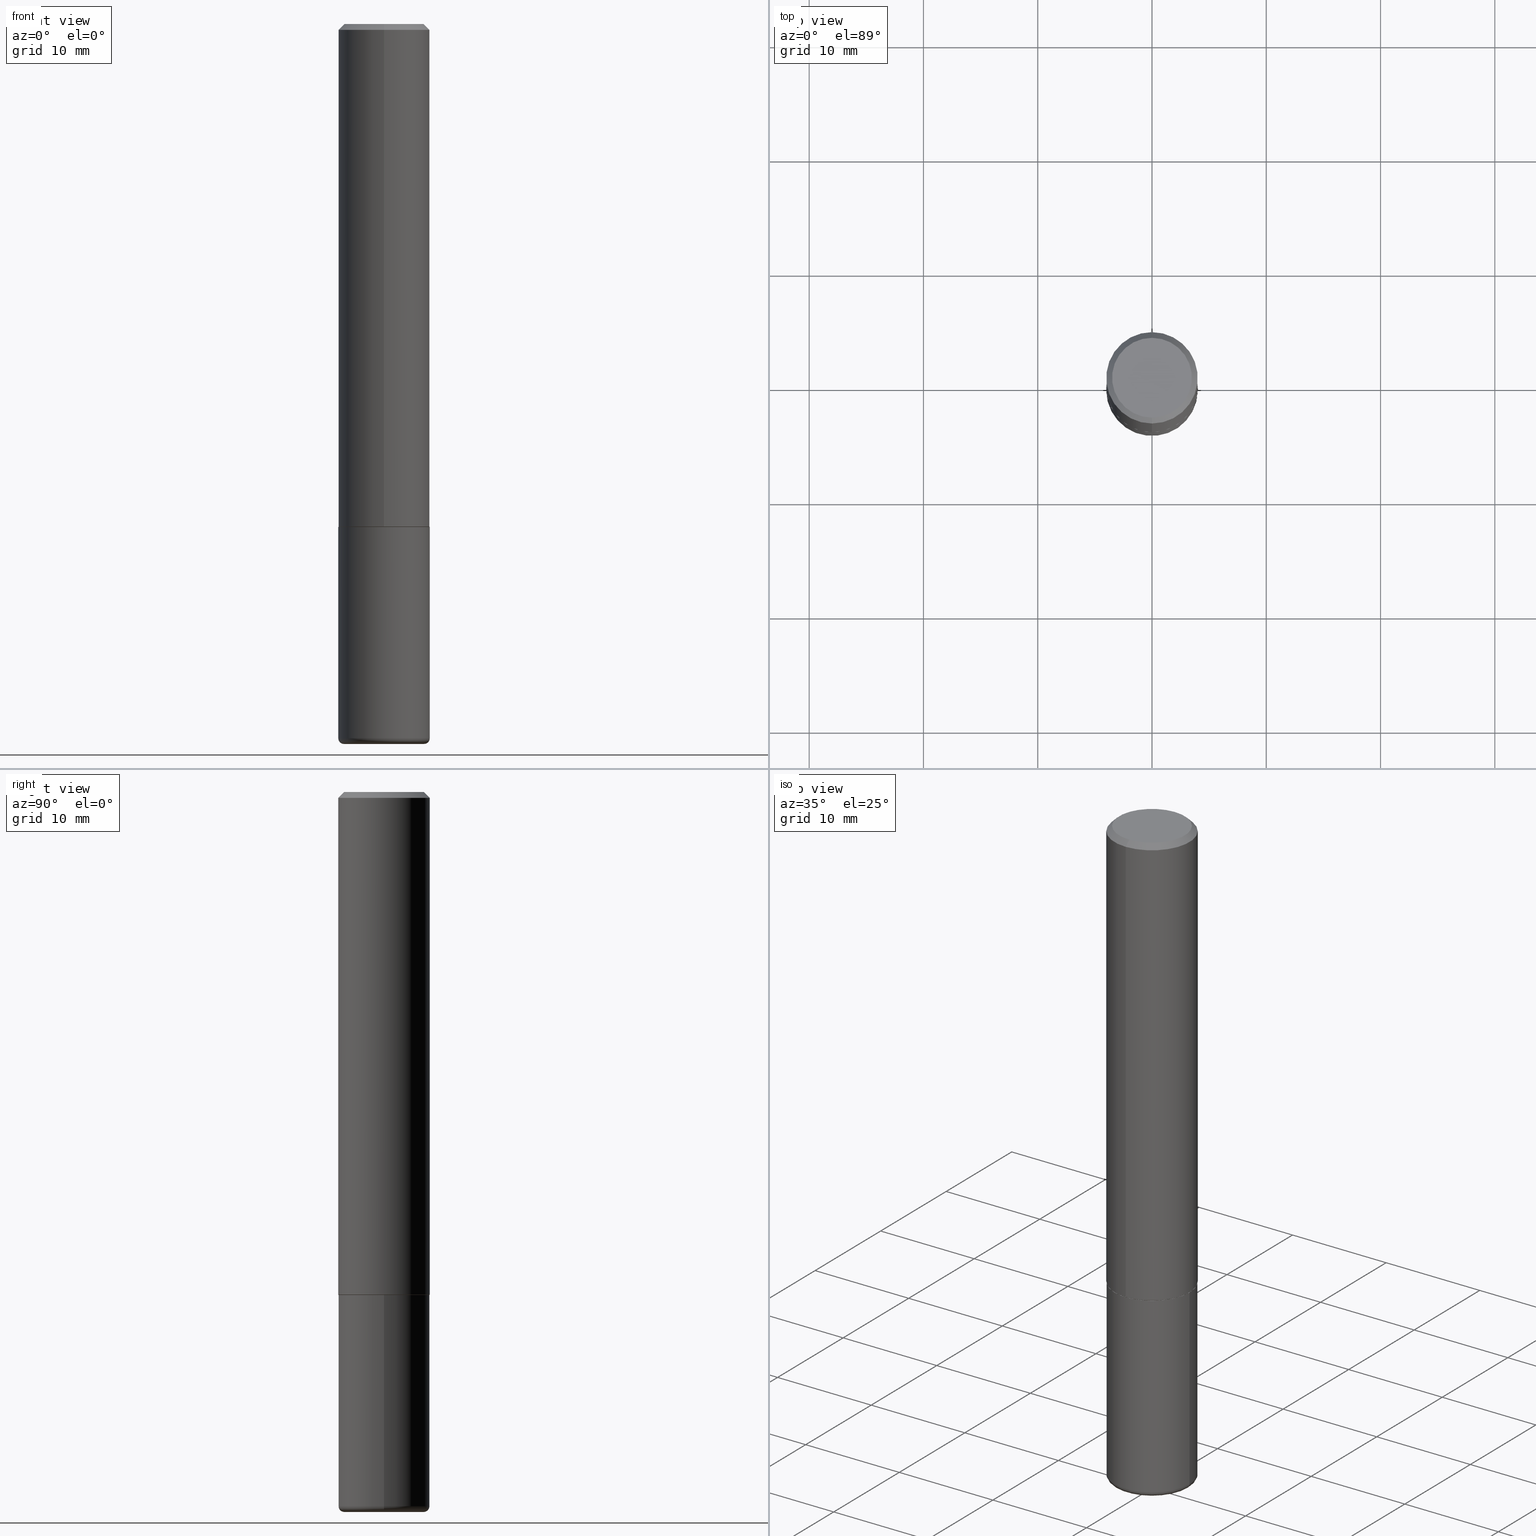
[diagram: canonical four-view strip — front | top / right | iso, engineering-drawing reading convention]
A machine part, canonical four-view strip (front | top / right | iso — engineering-drawing reading convention). The complete STEP part file that produces these views, byte-faithful:
ISO-10303-21;
HEADER;
FILE_DESCRIPTION (( 'STEP AP203' ),
    '1' );
FILE_NAME ('44847.STEP',
    '2024-03-04T10:06:39',
    ( '' ),
    ( '' ),
    'SwSTEP 2.0',
    'SolidWorks 2023',
    '' );
FILE_SCHEMA (( 'CONFIG_CONTROL_DESIGN' ));
ENDSEC;

DATA;
#1 = ORIENTED_EDGE ( 'NONE', *, *, #231, .F. ) ;
#2 = DIRECTION ( 'NONE',  ( 1.000000000000000000, -6.982962677686265922E-15, 0.000000000000000000 ) ) ;
#3 = ORIENTED_EDGE ( 'NONE', *, *, #268, .F. ) ;
#4 = CARTESIAN_POINT ( 'NONE',  ( 9.601573681818622643E-16, 0.1375000000000000944, -5.228303600724199869E-16 ) ) ;
#5 = AXIS2_PLACEMENT_3D ( 'NONE', #410, #50, #305 ) ;
#6 = VERTEX_POINT ( 'NONE', #391 ) ;
#7 = DIRECTION ( 'NONE',  ( -2.444792844423431679E-29, 3.492449354559260946E-15, 1.000000000000000000 ) ) ;
#8 = DIRECTION ( 'NONE',  ( 1.000000000000000000, -6.982962677686265922E-15, 0.000000000000000000 ) ) ;
#9 = CARTESIAN_POINT ( 'NONE',  ( -1.099816621735546065E-15, -0.1575000000000062461, -1.731299999999999617 ) ) ;
#10 = AXIS2_PLACEMENT_3D ( 'NONE', #13, #330, #152 ) ;
#11 = DIRECTION ( 'NONE',  ( -2.444792844423431399E-29, 3.492449354559261341E-15, 1.000000000000000000 ) ) ;
#12 = APPROVAL_STATUS ( 'not_yet_approved' ) ;
#13 = CARTESIAN_POINT ( 'NONE',  ( 0.000000000000000000, 0.000000000000000000, 0.000000000000000000 ) ) ;
#14 = EDGE_CURVE ( 'NONE', #165, #99, #309, .T. ) ;
#15 = AXIS2_PLACEMENT_3D ( 'NONE', #358, #272, #146 ) ;
#16 = VECTOR ( 'NONE', #210, 39.37007874015748143 ) ;
#17 = DIRECTION ( 'NONE',  ( -1.000000000000000000, 7.105427357601014480E-15, 0.000000000000000000 ) ) ;
#18 = EDGE_CURVE ( 'NONE', #67, #174, #96, .T. ) ;
#19 = COORDINATED_UNIVERSAL_TIME_OFFSET ( 5, 0, .BEHIND. ) ;
#20 = DIRECTION ( 'NONE',  ( -1.000000000000000000, 6.982962677686265922E-15, -4.876176775795935793E-29 ) ) ;
#21 = CARTESIAN_POINT ( 'NONE',  ( 4.235114644394711391E-29, -6.049970016903009365E-15, -1.732300000000000173 ) ) ;
#22 = PRODUCT_RELATED_PRODUCT_CATEGORY ( 'detail', '', ( #259 ) ) ;
#23 = LOCAL_TIME ( 5, 6, 39.00000000000000000, #28 ) ;
#24 = AXIS2_PLACEMENT_3D ( 'NONE', #297, #326, #208 ) ;
#25 = CARTESIAN_POINT ( 'NONE',  ( -0.1575000000000000011, 1.119104808822157801E-15, -7.747322767151475583E-30 ) ) ;
#26 = ORIENTED_EDGE ( 'NONE', *, *, #393, .F. ) ;
#27 = ORIENTED_EDGE ( 'NONE', *, *, #125, .T. ) ;
#28 = COORDINATED_UNIVERSAL_TIME_OFFSET ( 5, 0, .BEHIND. ) ;
#29 = AXIS2_PLACEMENT_3D ( 'NONE', #110, #239, #275 ) ;
#30 = EDGE_LOOP ( 'NONE', ( #202, #70, #26, #349 ) ) ;
#31 =( NAMED_UNIT ( * ) PLANE_ANGLE_UNIT ( ) SI_UNIT ( $, .RADIAN. ) );
#32 = PLANE ( 'NONE',  #73 ) ;
#33 = ORIENTED_EDGE ( 'NONE', *, *, #91, .F. ) ;
#34 = DIRECTION ( 'NONE',  ( -6.982962677686265922E-15, -1.000000000000000000, 3.469013325287948955E-15 ) ) ;
#35 = ORIENTED_EDGE ( 'NONE', *, *, #129, .T. ) ;
#36 = CONICAL_SURFACE ( 'NONE', #24, 0.1575000000000000289, 0.7853981633974477239 ) ;
#37 = CARTESIAN_POINT ( 'NONE',  ( 4.232669851550288088E-29, -6.046477567548449110E-15, -1.731300000000000283 ) ) ;
#38 = AXIS2_PLACEMENT_3D ( 'NONE', #68, #98, #34 ) ;
#39 = DIRECTION ( 'NONE',  ( -2.444792844423431679E-29, 3.492449354559260946E-15, 1.000000000000000000 ) ) ;
#40 = DIRECTION ( 'NONE',  ( -6.982962677686265922E-15, -1.000000000000000000, 3.492449354559260946E-15 ) ) ;
#41 = EDGE_CURVE ( 'NONE', #67, #236, #205, .T. ) ;
#42 = EDGE_LOOP ( 'NONE', ( #133, #312, #385, #95 ) ) ;
#43 = LINE ( 'NONE', #245, #218 ) ;
#44 = CIRCLE ( 'NONE', #161, 0.01970000000000002999 ) ;
#45 = LINE ( 'NONE', #82, #193 ) ;
#46 = AXIS2_PLACEMENT_3D ( 'NONE', #233, #417, #357 ) ;
#47 = ADVANCED_FACE ( 'NONE', ( #273 ), #392, .T. ) ;
#48 = CC_DESIGN_SECURITY_CLASSIFICATION ( #298, ( #397 ) ) ;
#49 = CC_DESIGN_DATE_AND_TIME_ASSIGNMENT ( #151, #52, ( #298 ) ) ;
#50 = DIRECTION ( 'NONE',  ( -2.445468806185136597E-29, 3.491481338843145583E-15, 1.000000000000000000 ) ) ;
#51 = FACE_OUTER_BOUND ( 'NONE', #137, .T. ) ;
#52 = DATE_TIME_ROLE ( 'classification_date' ) ;
#53 = DIRECTION ( 'NONE',  ( -2.445468806185136877E-29, 3.491481338843145188E-15, 1.000000000000000000 ) ) ;
#54 = DATE_AND_TIME ( #337, #163 ) ;
#55 = CARTESIAN_POINT ( 'NONE',  ( 1.119104808822158195E-15, 0.1575000000000000844, -5.500607733430839175E-16 ) ) ;
#56 = APPROVAL_ROLE ( '' ) ;
#57 = AXIS2_PLACEMENT_3D ( 'NONE', #21, #92, #313 ) ;
#58 = CARTESIAN_POINT ( 'NONE',  ( 0.1575000000000000289, -9.690955604093032420E-15, -2.460600000000000342 ) ) ;
#59 = EDGE_LOOP ( 'NONE', ( #1, #235, #195, #414 ) ) ;
#60 = CIRCLE ( 'NONE', #237, 0.1378000000000000058 ) ;
#61 =( CONVERSION_BASED_UNIT ( 'INCH', #131 ) LENGTH_UNIT ( ) NAMED_UNIT ( #156 ) );
#62 = DIRECTION ( 'NONE',  ( -2.444792844423431679E-29, 3.492449354559260946E-15, 1.000000000000000000 ) ) ;
#63 = ORIENTED_EDGE ( 'NONE', *, *, #285, .F. ) ;
#64 = PERSON_AND_ORGANIZATION ( #216, #103 ) ;
#65 = CIRCLE ( 'NONE', #57, 0.1565000000000000002 ) ;
#66 = ADVANCED_FACE ( 'NONE', ( #111 ), #36, .T. ) ;
#67 = VERTEX_POINT ( 'NONE', #143 ) ;
#68 = CARTESIAN_POINT ( 'NONE',  ( 4.232669851550288088E-29, -6.046477567548449110E-15, -1.731300000000000283 ) ) ;
#69 = ORIENTED_EDGE ( 'NONE', *, *, #194, .T. ) ;
#70 = ORIENTED_EDGE ( 'NONE', *, *, #291, .T. ) ;
#71 = PRODUCT_DEFINITION_SHAPE ( 'NONE', 'NONE',  #83 ) ;
#72 = CARTESIAN_POINT ( 'NONE',  ( 1.099816621735587480E-15, 0.1574999999999999456, -0.02000000000000058328 ) ) ;
#73 = AXIS2_PLACEMENT_3D ( 'NONE', #4, #292, #386 ) ;
#74 = EDGE_LOOP ( 'NONE', ( #416, #136, #63, #347 ) ) ;
#75 = DIRECTION ( 'NONE',  ( -2.444792844423431679E-29, 3.492449354559260946E-15, 1.000000000000000000 ) ) ;
#76 = ORIENTED_EDGE ( 'NONE', *, *, #407, .F. ) ;
#77 = CARTESIAN_POINT ( 'NONE',  ( 2.083871686318839495E-45, -2.976864212634307973E-31, -8.523714764104235322E-17 ) ) ;
#78 = APPROVAL_DATE_TIME ( #118, #254 ) ;
#79 = PLANE ( 'NONE',  #274 ) ;
#80 = CLOSED_SHELL ( 'NONE', ( #317, #246, #206, #221, #47, #353 ) ) ;
#81 = AXIS2_PLACEMENT_3D ( 'NONE', #179, #242, #365 ) ;
#82 = CARTESIAN_POINT ( 'NONE',  ( -1.099816621735587480E-15, -0.1575000000000000844, 5.500607733430839175E-16 ) ) ;
#83 = PRODUCT_DEFINITION ( 'UNKNOWN', '', #397, #117 ) ;
#84 = LOCAL_TIME ( 5, 6, 39.00000000000000000, #350 ) ;
#85 = CARTESIAN_POINT ( 'NONE',  ( -0.1575000000000000289, -7.472034173535286547E-15, -2.460600000000000342 ) ) ;
#86 = PLANE ( 'NONE',  #188 ) ;
#87 = APPLICATION_CONTEXT ( 'configuration controlled 3d designs of mechanical parts and assemblies' ) ;
#88 = CIRCLE ( 'NONE', #5, 0.1575000000000000011 ) ;
#89 = PERSON_AND_ORGANIZATION_ROLE ( 'design_supplier' ) ;
#90 = DIRECTION ( 'NONE',  ( 1.000000000000000000, -6.982962677686268288E-15, 0.000000000000000000 ) ) ;
#91 = EDGE_CURVE ( 'NONE', #293, #173, #310, .T. ) ;
#92 = DIRECTION ( 'NONE',  ( -2.444792844423431679E-29, 3.492449354559260946E-15, 1.000000000000000000 ) ) ;
#93 = COORDINATED_UNIVERSAL_TIME_OFFSET ( 5, 0, .BEHIND. ) ;
#94 = APPROVAL_PERSON_ORGANIZATION ( #64, #254, #315 ) ;
#95 = ORIENTED_EDGE ( 'NONE', *, *, #129, .F. ) ;
#96 = CIRCLE ( 'NONE', #153, 0.1378000000000000058 ) ;
#97 = AXIS2_PLACEMENT_3D ( 'NONE', #240, #39, #316 ) ;
#98 = DIRECTION ( 'NONE',  ( -2.444792844423431679E-29, 3.492449354559260946E-15, 1.000000000000000000 ) ) ;
#99 = VERTEX_POINT ( 'NONE', #328 ) ;
#100 = EDGE_CURVE ( 'NONE', #261, #314, #338, .T. ) ;
#101 = ORIENTED_EDGE ( 'NONE', *, *, #223, .T. ) ;
#102 = CARTESIAN_POINT ( 'NONE',  ( 0.000000000000000000, 0.000000000000000000, 0.000000000000000000 ) ) ;
#103 = ORGANIZATION ( 'UNSPECIFIED', 'UNSPECIFIED', '' ) ;
#104 = ORIENTED_EDGE ( 'NONE', *, *, #18, .T. ) ;
#105 = AXIS2_PLACEMENT_3D ( 'NONE', #253, #250, #90 ) ;
#106 = CARTESIAN_POINT ( 'NONE',  ( -1.092833659057858276E-15, -0.1565000000000060232, -1.732299999999999729 ) ) ;
#107 = ORIENTED_EDGE ( 'NONE', *, *, #171, .T. ) ;
#108 = DIRECTION ( 'NONE',  ( -4.937700262164884886E-15, -0.7071067811865933139, 0.7071067811865017205 ) ) ;
#109 = DIRECTION ( 'NONE',  ( -6.982962677686264344E-15, -1.000000000000000000, 3.496114991891764787E-15 ) ) ;
#110 = CARTESIAN_POINT ( 'NONE',  ( 4.235114644394711391E-29, -6.049970016903009365E-15, -1.732300000000000173 ) ) ;
#111 = FACE_OUTER_BOUND ( 'NONE', #141, .T. ) ;
#112 = EDGE_CURVE ( 'NONE', #236, #300, #207, .T. ) ;
#113 = CARTESIAN_POINT ( 'NONE',  ( 4.235114644394711391E-29, -6.049970016903009365E-15, -1.732300000000000173 ) ) ;
#114 = VECTOR ( 'NONE', #108, 39.37007874015748143 ) ;
#115 = ORIENTED_EDGE ( 'NONE', *, *, #171, .F. ) ;
#116 = CC_DESIGN_PERSON_AND_ORGANIZATION_ASSIGNMENT ( #352, #168, ( #259 ) ) ;
#117 = DESIGN_CONTEXT ( 'detailed design', #87, 'design' ) ;
#118 = DATE_AND_TIME ( #267, #23 ) ;
#119 = ADVANCED_FACE ( 'NONE', ( #418 ), #32, .F. ) ;
#120 = CONICAL_SURFACE ( 'NONE', #175, 0.1565000000000000002, 0.7853981633975165577 ) ;
#121 = DIRECTION ( 'NONE',  ( -2.445468806185136597E-29, 3.491481338843145583E-15, 1.000000000000000000 ) ) ;
#122 = CIRCLE ( 'NONE', #46, 0.1575000000000000011 ) ;
#123 = PERSON_AND_ORGANIZATION ( #216, #103 ) ;
#124 = DIRECTION ( 'NONE',  ( 1.000000000000000000, -6.982962677686265922E-15, 4.876176775795935232E-29 ) ) ;
#125 = EDGE_CURVE ( 'NONE', #199, #173, #140, .T. ) ;
#126 = CARTESIAN_POINT ( 'NONE',  ( 0.000000000000000000, 0.000000000000000000, 0.000000000000000000 ) ) ;
#127 = CARTESIAN_POINT ( 'NONE',  ( 4.889585688846871450E-31, -6.984898709118533528E-17, -0.02000000000000003511 ) ) ;
#128 = CARTESIAN_POINT ( 'NONE',  ( -0.1378000000000000058, -7.612011092480026645E-15, -2.460600000000000342 ) ) ;
#129 = EDGE_CURVE ( 'NONE', #173, #99, #45, .T. ) ;
#130 = DATE_AND_TIME ( #382, #84 ) ;
#131 = LENGTH_MEASURE_WITH_UNIT ( LENGTH_MEASURE( 0.02539999999999999897 ), #270 );
#132 = ADVANCED_FACE ( 'NONE', ( #180 ), #177, .T. ) ;
#133 = ORIENTED_EDGE ( 'NONE', *, *, #393, .T. ) ;
#134 = VECTOR ( 'NONE', #252, 39.37007874015748143 ) ;
#135 = DIRECTION ( 'NONE',  ( 1.000000000000000000, 0.000000000000000000, 0.000000000000000000 ) ) ;
#136 = ORIENTED_EDGE ( 'NONE', *, *, #268, .T. ) ;
#137 = EDGE_LOOP ( 'NONE', ( #3, #384, #321, #170 ) ) ;
#138 = APPROVAL_STATUS ( 'not_yet_approved' ) ;
#139 =( GEOMETRIC_REPRESENTATION_CONTEXT ( 3 ) GLOBAL_UNCERTAINTY_ASSIGNED_CONTEXT ( ( #189 ) ) GLOBAL_UNIT_ASSIGNED_CONTEXT ( ( #61, #31, #265 ) ) REPRESENTATION_CONTEXT ( 'NONE', 'WORKASPACE' ) );
#140 = LINE ( 'NONE', #106, #114 ) ;
#141 = EDGE_LOOP ( 'NONE', ( #288, #290, #332, #204 ) ) ;
#142 = CARTESIAN_POINT ( 'NONE',  ( 1.115552095143399895E-15, 0.1564999999999939495, -1.732300000000000839 ) ) ;
#143 = CARTESIAN_POINT ( 'NONE',  ( 0.1378000000000000058, -9.622173421717822812E-15, -2.480300000000000171 ) ) ;
#144 = VERTEX_POINT ( 'NONE', #184 ) ;
#145 = FACE_OUTER_BOUND ( 'NONE', #232, .T. ) ;
#146 = DIRECTION ( 'NONE',  ( 1.000000000000000000, -6.982962677686317987E-15, 0.000000000000000000 ) ) ;
#147 = LINE ( 'NONE', #395, #16 ) ;
#148 = ADVANCED_FACE ( 'NONE', ( #212 ), #368, .T. ) ;
#149 = EDGE_CURVE ( 'NONE', #412, #199, #167, .T. ) ;
#150 = DIRECTION ( 'NONE',  ( 4.937700262164544887E-15, 0.7071067811865446862, -0.7071067811865503483 ) ) ;
#151 = DATE_AND_TIME ( #333, #244 ) ;
#152 = DIRECTION ( 'NONE',  ( -6.982962677686265922E-15, -1.000000000000000000, 3.492449354559260946E-15 ) ) ;
#153 = AXIS2_PLACEMENT_3D ( 'NONE', #361, #388, #8 ) ;
#154 = CARTESIAN_POINT ( 'NONE',  ( 1.029986994958724774E-15, 0.1375000000000000944, -5.654489338929410464E-16 ) ) ;
#155 = ADVANCED_FACE ( 'NONE', ( #145 ), #364, .F. ) ;
#156 = DIMENSIONAL_EXPONENTS ( 1.000000000000000000, 0.000000000000000000, 0.000000000000000000, 0.000000000000000000, 0.000000000000000000, 0.000000000000000000, 0.000000000000000000 ) ;
#157 = CALENDAR_DATE ( 2024, 4, 3 ) ;
#158 = DIRECTION ( 'NONE',  ( -2.444792844423431679E-29, 3.492449354559260946E-15, 1.000000000000000000 ) ) ;
#159 = APPROVAL ( #335, 'UNSPECIFIED' ) ;
#160 = CARTESIAN_POINT ( 'NONE',  ( 0.000000000000000000, 0.000000000000000000, 0.000000000000000000 ) ) ;
#161 = AXIS2_PLACEMENT_3D ( 'NONE', #128, #377, #17 ) ;
#162 = DATE_TIME_ROLE ( 'creation_date' ) ;
#163 = LOCAL_TIME ( 5, 6, 39.00000000000000000, #19 ) ;
#164 = ORIENTED_EDGE ( 'NONE', *, *, #187, .F. ) ;
#165 = VERTEX_POINT ( 'NONE', #72 ) ;
#166 = MANIFOLD_SOLID_BREP ( 'Body-Move/Copy2[2]', #400 ) ;
#167 = CIRCLE ( 'NONE', #327, 0.1565000000000000002 ) ;
#168 = PERSON_AND_ORGANIZATION_ROLE ( 'design_owner' ) ;
#169 = DIRECTION ( 'NONE',  ( -2.445468806185136597E-29, 3.491481338843145583E-15, 1.000000000000000000 ) ) ;
#170 = ORIENTED_EDGE ( 'NONE', *, *, #223, .F. ) ;
#171 = EDGE_CURVE ( 'NONE', #314, #261, #401, .T. ) ;
#172 = CARTESIAN_POINT ( 'NONE',  ( 6.017320544499148018E-29, -8.591138982357444151E-15, -2.460600000000000342 ) ) ;
#173 = VERTEX_POINT ( 'NONE', #9 ) ;
#174 = VERTEX_POINT ( 'NONE', #398 ) ;
#175 = AXIS2_PLACEMENT_3D ( 'NONE', #413, #62, #229 ) ;
#176 = DIRECTION ( 'NONE',  ( -2.444792844423431679E-29, 3.492449354559260946E-15, 1.000000000000000000 ) ) ;
#177 = CYLINDRICAL_SURFACE ( 'NONE', #10, 0.1575000000000000844 ) ;
#178 = CC_DESIGN_PERSON_AND_ORGANIZATION_ASSIGNMENT ( #409, #214, ( #397 ) ) ;
#179 = CARTESIAN_POINT ( 'NONE',  ( 6.017320544499148018E-29, -8.591138982357444151E-15, -2.460600000000000342 ) ) ;
#180 = FACE_OUTER_BOUND ( 'NONE', #42, .T. ) ;
#181 = DIRECTION ( 'NONE',  ( -6.982962677686265922E-15, -1.000000000000000000, 3.492449354559261341E-15 ) ) ;
#182 = AXIS2_PLACEMENT_3D ( 'NONE', #126, #158, #256 ) ;
#183 = CC_DESIGN_PERSON_AND_ORGANIZATION_ASSIGNMENT ( #255, #219, ( #298 ) ) ;
#184 = CARTESIAN_POINT ( 'NONE',  ( 0.1575000000000000011, -7.148109745013570136E-15, -1.732300000000000173 ) ) ;
#185 = APPROVAL_PERSON_ORGANIZATION ( #123, #411, #374 ) ;
#186 = FACE_OUTER_BOUND ( 'NONE', #74, .T. ) ;
#187 = EDGE_CURVE ( 'NONE', #261, #99, #147, .T. ) ;
#188 = AXIS2_PLACEMENT_3D ( 'NONE', #406, #376, #339 ) ;
#189 = UNCERTAINTY_MEASURE_WITH_UNIT (LENGTH_MEASURE( 1.000000000000000082E-05 ), #61, 'distance_accuracy_value', 'NONE');
#190 = FACE_OUTER_BOUND ( 'NONE', #396, .T. ) ;
#191 = FACE_OUTER_BOUND ( 'NONE', #230, .T. ) ;
#192 = APPROVAL_DATE_TIME ( #405, #411 ) ;
#193 = VECTOR ( 'NONE', #366, 39.37007874015748143 ) ;
#194 = EDGE_CURVE ( 'NONE', #314, #165, #43, .T. ) ;
#195 = ORIENTED_EDGE ( 'NONE', *, *, #41, .T. ) ;
#196 = CARTESIAN_POINT ( 'NONE',  ( 6.065496279980994755E-29, -8.659921164732655335E-15, -2.480300000000000171 ) ) ;
#197 = ORIENTED_EDGE ( 'NONE', *, *, #18, .F. ) ;
#198 = APPLICATION_PROTOCOL_DEFINITION ( 'international standard', 'config_control_design', 1994, #87 ) ;
#199 = VERTEX_POINT ( 'NONE', #301 ) ;
#200 = CONICAL_SURFACE ( 'NONE', #227, 0.1575000000000000289, 0.7853981633974477239 ) ;
#201 = DIRECTION ( 'NONE',  ( -2.445468806185136597E-29, 3.491481338843145583E-15, 1.000000000000000000 ) ) ;
#202 = ORIENTED_EDGE ( 'NONE', *, *, #359, .T. ) ;
#203 = APPROVAL_PERSON_ORGANIZATION ( #369, #159, #56 ) ;
#204 = ORIENTED_EDGE ( 'NONE', *, *, #194, .F. ) ;
#205 = CIRCLE ( 'NONE', #15, 0.01970000000000002999 ) ;
#206 = ADVANCED_FACE ( 'NONE', ( #367 ), #79, .F. ) ;
#207 = CIRCLE ( 'NONE', #241, 0.1575000000000000011 ) ;
#208 = DIRECTION ( 'NONE',  ( 6.982962677686264344E-15, 1.000000000000000000, -3.496114991891764787E-15 ) ) ;
#209 = ORIENTED_EDGE ( 'NONE', *, *, #285, .T. ) ;
#210 = DIRECTION ( 'NONE',  ( -4.851104656540961119E-15, -0.7071067811865495711, -0.7071067811865454633 ) ) ;
#211 = ORIENTED_EDGE ( 'NONE', *, *, #149, .F. ) ;
#212 = FACE_OUTER_BOUND ( 'NONE', #257, .T. ) ;
#213 = ADVANCED_FACE ( 'NONE', ( #283 ), #217, .T. ) ;
#214 = PERSON_AND_ORGANIZATION_ROLE ( 'creator' ) ;
#215 = CYLINDRICAL_SURFACE ( 'NONE', #346, 0.1575000000000000011 ) ;
#216 = PERSON ( 'UNSPECIFIED', 'UNSPECIFIED', 'UNSPECIFIED', ('UNSPECIFIED'), ('UNSPECIFIED'), ('UNSPECIFIED') ) ;
#217 = CYLINDRICAL_SURFACE ( 'NONE', #182, 0.1575000000000000844 ) ;
#218 = VECTOR ( 'NONE', #150, 39.37007874015748143 ) ;
#219 = PERSON_AND_ORGANIZATION_ROLE ( 'classification_officer' ) ;
#220 = CARTESIAN_POINT ( 'NONE',  ( 1.119104808822180086E-15, 0.1574999999999941447, -1.731300000000000727 ) ) ;
#221 = ADVANCED_FACE ( 'NONE', ( #51 ), #215, .T. ) ;
#222 = LINE ( 'NONE', #307, #318 ) ;
#223 = EDGE_CURVE ( 'NONE', #6, #144, #88, .T. ) ;
#224 = CARTESIAN_POINT ( 'NONE',  ( 6.017320544499148018E-29, -8.591138982357444151E-15, -2.460600000000000342 ) ) ;
#225 = APPLICATION_CONTEXT ( 'configuration controlled 3d designs of mechanical parts and assemblies' ) ;
#226 = AXIS2_PLACEMENT_3D ( 'NONE', #238, #176, #109 ) ;
#227 = AXIS2_PLACEMENT_3D ( 'NONE', #127, #345, #404 ) ;
#228 = ORIENTED_EDGE ( 'NONE', *, *, #291, .F. ) ;
#229 = DIRECTION ( 'NONE',  ( -6.982962677686265922E-15, -1.000000000000000000, 3.491179544618866730E-15 ) ) ;
#230 = EDGE_LOOP ( 'NONE', ( #164, #115, #69, #263 ) ) ;
#231 = EDGE_CURVE ( 'NONE', #174, #300, #44, .T. ) ;
#232 = EDGE_LOOP ( 'NONE', ( #286, #211 ) ) ;
#233 = CARTESIAN_POINT ( 'NONE',  ( 6.017320544499148018E-29, -8.591138982357444151E-15, -2.460600000000000342 ) ) ;
#234 = CC_DESIGN_DATE_AND_TIME_ASSIGNMENT ( #54, #162, ( #83 ) ) ;
#235 = ORIENTED_EDGE ( 'NONE', *, *, #407, .T. ) ;
#236 = VERTEX_POINT ( 'NONE', #58 ) ;
#237 = AXIS2_PLACEMENT_3D ( 'NONE', #196, #201, #2 ) ;
#238 = CARTESIAN_POINT ( 'NONE',  ( 4.889585688846871450E-31, -6.984898709118533528E-17, -0.02000000000000003511 ) ) ;
#239 = DIRECTION ( 'NONE',  ( -2.444792844423431679E-29, 3.492449354559260946E-15, 1.000000000000000000 ) ) ;
#240 = CARTESIAN_POINT ( 'NONE',  ( 2.083871686318839495E-45, -2.976864212634307973E-31, -8.523714764104235322E-17 ) ) ;
#241 = AXIS2_PLACEMENT_3D ( 'NONE', #172, #169, #294 ) ;
#242 = DIRECTION ( 'NONE',  ( -2.445468806185136597E-29, 3.491481338843145583E-15, 1.000000000000000000 ) ) ;
#243 = EDGE_CURVE ( 'NONE', #293, #165, #280, .T. ) ;
#244 = LOCAL_TIME ( 5, 6, 39.00000000000000000, #93 ) ;
#245 = CARTESIAN_POINT ( 'NONE',  ( 1.099816621735587480E-15, 0.1574999999999999456, -0.02000000000000058328 ) ) ;
#246 = ADVANCED_FACE ( 'NONE', ( #190 ), #375, .T. ) ;
#247 = CIRCLE ( 'NONE', #105, 0.1575000000000000011 ) ;
#248 = DIRECTION ( 'NONE',  ( -2.444792844423431679E-29, 3.492449354559260946E-15, 1.000000000000000000 ) ) ;
#249 = COORDINATED_UNIVERSAL_TIME_OFFSET ( 5, 0, .BEHIND. ) ;
#250 = DIRECTION ( 'NONE',  ( -2.445468806185136597E-29, 3.491481338843145583E-15, 1.000000000000000000 ) ) ;
#251 = FACE_OUTER_BOUND ( 'NONE', #324, .T. ) ;
#252 = DIRECTION ( 'NONE',  ( -2.445468806185136877E-29, 3.491481338843145188E-15, 1.000000000000000000 ) ) ;
#253 = CARTESIAN_POINT ( 'NONE',  ( 4.236285612954512953E-29, -6.048293123277982656E-15, -1.732300000000000173 ) ) ;
#254 = APPROVAL ( #138, 'UNSPECIFIED' ) ;
#255 = PERSON_AND_ORGANIZATION ( #216, #103 ) ;
#256 = DIRECTION ( 'NONE',  ( -6.982962677686265922E-15, -1.000000000000000000, 3.492449354559260946E-15 ) ) ;
#257 = EDGE_LOOP ( 'NONE', ( #228, #266, #27, #33 ) ) ;
#258 = SHAPE_DEFINITION_REPRESENTATION ( #71, #325 ) ;
#259 = PRODUCT ( '44847', '44847', '', ( #380 ) ) ;
#260 = AXIS2_PLACEMENT_3D ( 'NONE', #77, #75, #40 ) ;
#261 = VERTEX_POINT ( 'NONE', #408 ) ;
#262 = APPLICATION_PROTOCOL_DEFINITION ( 'international standard', 'config_control_design', 1994, #225 ) ;
#263 = ORIENTED_EDGE ( 'NONE', *, *, #14, .T. ) ;
#264 = APPROVAL_DATE_TIME ( #130, #159 ) ;
#265 =( NAMED_UNIT ( * ) SI_UNIT ( $, .STERADIAN. ) SOLID_ANGLE_UNIT ( ) );
#266 = ORIENTED_EDGE ( 'NONE', *, *, #149, .T. ) ;
#267 = CALENDAR_DATE ( 2024, 4, 3 ) ;
#268 = EDGE_CURVE ( 'NONE', #300, #6, #306, .T. ) ;
#269 = EDGE_LOOP ( 'NONE', ( #378, #351, #35, #379 ) ) ;
#270 =( LENGTH_UNIT ( ) NAMED_UNIT ( * ) SI_UNIT ( $, .METRE. ) );
#271 = DIRECTION ( 'NONE',  ( -6.982962677686265922E-15, -1.000000000000000000, 3.469013325287948955E-15 ) ) ;
#272 = DIRECTION ( 'NONE',  ( -6.982962677686266711E-15, -1.000000000000000000, 3.491481338843145583E-15 ) ) ;
#273 = FACE_OUTER_BOUND ( 'NONE', #59, .T. ) ;
#274 = AXIS2_PLACEMENT_3D ( 'NONE', #276, #399, #20 ) ;
#275 = DIRECTION ( 'NONE',  ( -6.982962677686265922E-15, -1.000000000000000000, 3.491179544618866730E-15 ) ) ;
#276 = CARTESIAN_POINT ( 'NONE',  ( 4.236285612954512953E-29, -6.048293123277982656E-15, -1.732300000000000173 ) ) ;
#277 = ADVANCED_FACE ( 'NONE', ( #191 ), #200, .T. ) ;
#278 = AXIS2_PLACEMENT_3D ( 'NONE', #360, #11, #181 ) ;
#279 = DIRECTION ( 'NONE',  ( -2.445468806185136597E-29, 3.491481338843145583E-15, 1.000000000000000000 ) ) ;
#280 = LINE ( 'NONE', #55, #304 ) ;
#281 = CARTESIAN_POINT ( 'NONE',  ( 0.000000000000000000, 0.000000000000000000, 0.000000000000000000 ) ) ;
#282 = AXIS2_PLACEMENT_3D ( 'NONE', #160, #279, #124 ) ;
#283 = FACE_OUTER_BOUND ( 'NONE', #269, .T. ) ;
#284 = FACE_OUTER_BOUND ( 'NONE', #30, .T. ) ;
#285 = EDGE_CURVE ( 'NONE', #144, #6, #247, .T. ) ;
#286 = ORIENTED_EDGE ( 'NONE', *, *, #359, .F. ) ;
#287 = AXIS2_PLACEMENT_3D ( 'NONE', #37, #7, #271 ) ;
#288 = ORIENTED_EDGE ( 'NONE', *, *, #100, .F. ) ;
#289 = DIRECTION ( 'NONE',  ( -2.444792844423431679E-29, 3.492449354559260946E-15, 1.000000000000000000 ) ) ;
#290 = ORIENTED_EDGE ( 'NONE', *, *, #187, .T. ) ;
#291 = EDGE_CURVE ( 'NONE', #412, #293, #222, .T. ) ;
#292 = DIRECTION ( 'NONE',  ( 2.444792844423431399E-29, -3.492449354559261341E-15, -1.000000000000000000 ) ) ;
#293 = VERTEX_POINT ( 'NONE', #220 ) ;
#294 = DIRECTION ( 'NONE',  ( 1.000000000000000000, -6.982962677686261977E-15, 0.000000000000000000 ) ) ;
#295 = EDGE_LOOP ( 'NONE', ( #209, #101 ) ) ;
#296 = CIRCLE ( 'NONE', #354, 0.1575000000000000289 ) ;
#297 = CARTESIAN_POINT ( 'NONE',  ( 4.889585688846871450E-31, -6.984898709118533528E-17, -0.02000000000000003511 ) ) ;
#298 = SECURITY_CLASSIFICATION ( '', '', #341 ) ;
#299 = DIRECTION ( 'NONE',  ( -6.982962677686265922E-15, -1.000000000000000000, 3.491179544618866730E-15 ) ) ;
#300 = VERTEX_POINT ( 'NONE', #85 ) ;
#301 = CARTESIAN_POINT ( 'NONE',  ( -1.092833659057858276E-15, -0.1565000000000060232, -1.732299999999999729 ) ) ;
#302 = MANIFOLD_SOLID_BREP ( 'Body-Move/Copy2[1]', #80 ) ;
#303 = CC_DESIGN_APPROVAL ( #159, ( #298 ) ) ;
#304 = VECTOR ( 'NONE', #402, 39.37007874015748143 ) ;
#305 = DIRECTION ( 'NONE',  ( 1.000000000000000000, -6.982962677686268288E-15, 0.000000000000000000 ) ) ;
#306 = LINE ( 'NONE', #25, #134 ) ;
#307 = CARTESIAN_POINT ( 'NONE',  ( 1.111999381464598997E-15, 0.1564999999999939495, -1.732300000000000839 ) ) ;
#308 = CYLINDRICAL_SURFACE ( 'NONE', #282, 0.1575000000000000011 ) ;
#309 = CIRCLE ( 'NONE', #226, 0.1575000000000000289 ) ;
#310 = CIRCLE ( 'NONE', #287, 0.1575000000000001954 ) ;
#311 = DIRECTION ( 'NONE',  ( 1.000000000000000000, -6.982962677686273021E-15, 4.883557194083115143E-29 ) ) ;
#312 = ORIENTED_EDGE ( 'NONE', *, *, #243, .T. ) ;
#313 = DIRECTION ( 'NONE',  ( -6.982962677686265922E-15, -1.000000000000000000, 3.491179544618866730E-15 ) ) ;
#314 = VERTEX_POINT ( 'NONE', #154 ) ;
#315 = APPROVAL_ROLE ( '' ) ;
#316 = DIRECTION ( 'NONE',  ( -6.982962677686265922E-15, -1.000000000000000000, 3.492449354559260946E-15 ) ) ;
#317 = ADVANCED_FACE ( 'NONE', ( #186 ), #308, .T. ) ;
#318 = VECTOR ( 'NONE', #370, 39.37007874015748143 ) ;
#319 = ORIENTED_EDGE ( 'NONE', *, *, #100, .T. ) ;
#320 = CIRCLE ( 'NONE', #38, 0.1575000000000001954 ) ;
#321 = ORIENTED_EDGE ( 'NONE', *, *, #340, .T. ) ;
#322 = CC_DESIGN_PERSON_AND_ORGANIZATION_ASSIGNMENT ( #390, #394, ( #83 ) ) ;
#323 = DIRECTION ( 'NONE',  ( -6.982962677686264344E-15, -1.000000000000000000, 3.496114991891764787E-15 ) ) ;
#324 = EDGE_LOOP ( 'NONE', ( #197, #76 ) ) ;
#325 = ADVANCED_BREP_SHAPE_REPRESENTATION ( '44847', ( #302, #166, #344 ), #139 ) ;
#326 = DIRECTION ( 'NONE',  ( 2.444792844423431679E-29, -3.492449354559260946E-15, -1.000000000000000000 ) ) ;
#327 = AXIS2_PLACEMENT_3D ( 'NONE', #113, #248, #299 ) ;
#328 = CARTESIAN_POINT ( 'NONE',  ( -1.080528434649015779E-15, -0.1575000000000000844, -0.01999999999999948347 ) ) ;
#329 = ORIENTED_EDGE ( 'NONE', *, *, #41, .F. ) ;
#330 = DIRECTION ( 'NONE',  ( -2.444792844423431679E-29, 3.492449354559260946E-15, 1.000000000000000000 ) ) ;
#331 = AXIS2_PLACEMENT_3D ( 'NONE', #224, #121, #311 ) ;
#332 = ORIENTED_EDGE ( 'NONE', *, *, #387, .T. ) ;
#333 = CALENDAR_DATE ( 2024, 4, 3 ) ;
#334 = CC_DESIGN_APPROVAL ( #411, ( #397 ) ) ;
#335 = APPROVAL_STATUS ( 'not_yet_approved' ) ;
#336 = DIRECTION ( 'NONE',  ( 1.000000000000000000, -6.982962677686265922E-15, 4.876176775795935232E-29 ) ) ;
#337 = CALENDAR_DATE ( 2024, 4, 3 ) ;
#338 = CIRCLE ( 'NONE', #97, 0.1375000000000000944 ) ;
#339 = DIRECTION ( 'NONE',  ( -1.000000000000000000, 6.982962677686265922E-15, -4.876176775795935793E-29 ) ) ;
#340 = EDGE_CURVE ( 'NONE', #236, #144, #373, .T. ) ;
#341 = SECURITY_CLASSIFICATION_LEVEL ( 'unclassified' ) ;
#342 = CARTESIAN_POINT ( 'NONE',  ( 0.1575000000000000011, -1.099816621735586889E-15, 7.679978421878598033E-30 ) ) ;
#343 = DIRECTION ( 'NONE',  ( -2.445468806185136597E-29, 3.491481338843145583E-15, 1.000000000000000000 ) ) ;
#344 = AXIS2_PLACEMENT_3D ( 'NONE', #102, #415, #135 ) ;
#345 = DIRECTION ( 'NONE',  ( 2.444792844423431679E-29, -3.492449354559260946E-15, -1.000000000000000000 ) ) ;
#346 = AXIS2_PLACEMENT_3D ( 'NONE', #281, #343, #336 ) ;
#347 = ORIENTED_EDGE ( 'NONE', *, *, #340, .F. ) ;
#348 = CARTESIAN_POINT ( 'NONE',  ( 4.889585688846871450E-31, -6.984898709118533528E-17, -0.02000000000000003511 ) ) ;
#349 = ORIENTED_EDGE ( 'NONE', *, *, #125, .F. ) ;
#350 = COORDINATED_UNIVERSAL_TIME_OFFSET ( 5, 0, .BEHIND. ) ;
#351 = ORIENTED_EDGE ( 'NONE', *, *, #91, .T. ) ;
#352 = PERSON_AND_ORGANIZATION ( #216, #103 ) ;
#353 = ADVANCED_FACE ( 'NONE', ( #251 ), #86, .T. ) ;
#354 = AXIS2_PLACEMENT_3D ( 'NONE', #348, #289, #323 ) ;
#355 = ORIENTED_EDGE ( 'NONE', *, *, #231, .T. ) ;
#356 = ORIENTED_EDGE ( 'NONE', *, *, #112, .F. ) ;
#357 = DIRECTION ( 'NONE',  ( 1.000000000000000000, -6.982962677686261977E-15, 0.000000000000000000 ) ) ;
#358 = CARTESIAN_POINT ( 'NONE',  ( 0.1378000000000000058, -9.553391239342613205E-15, -2.460600000000000342 ) ) ;
#359 = EDGE_CURVE ( 'NONE', #199, #412, #65, .T. ) ;
#360 = CARTESIAN_POINT ( 'NONE',  ( 4.235114644394711391E-29, -6.049970016903009365E-15, -1.732300000000000173 ) ) ;
#361 = CARTESIAN_POINT ( 'NONE',  ( 6.065496279980994755E-29, -8.659921164732655335E-15, -2.480300000000000171 ) ) ;
#362 = VECTOR ( 'NONE', #53, 39.37007874015748143 ) ;
#363 = CC_DESIGN_PERSON_AND_ORGANIZATION_ASSIGNMENT ( #372, #89, ( #397 ) ) ;
#364 = PLANE ( 'NONE',  #278 ) ;
#365 = DIRECTION ( 'NONE',  ( 1.000000000000000000, -6.982962677686273021E-15, 4.883557194083115143E-29 ) ) ;
#366 = DIRECTION ( 'NONE',  ( -2.444792844423431399E-29, 3.492449354559261341E-15, 1.000000000000000000 ) ) ;
#367 = FACE_OUTER_BOUND ( 'NONE', #295, .T. ) ;
#368 = CONICAL_SURFACE ( 'NONE', #29, 0.1565000000000000002, 0.7853981633975165577 ) ;
#369 = PERSON_AND_ORGANIZATION ( #216, #103 ) ;
#370 = DIRECTION ( 'NONE',  ( 5.024295867788404755E-15, 0.7071067811865981989, 0.7071067811864968355 ) ) ;
#371 = LOCAL_TIME ( 5, 6, 39.00000000000000000, #249 ) ;
#372 = PERSON_AND_ORGANIZATION ( #216, #103 ) ;
#373 = LINE ( 'NONE', #342, #362 ) ;
#374 = APPROVAL_ROLE ( '' ) ;
#375 = TOROIDAL_SURFACE ( 'NONE', #331, 0.1378000000000000058, 0.01970000000000002999 ) ;
#376 = DIRECTION ( 'NONE',  ( 2.438088387897960049E-29, -3.491481338843145188E-15, -1.000000000000000000 ) ) ;
#377 = DIRECTION ( 'NONE',  ( 7.105427357601001859E-15, 1.000000000000000000, -3.491481338843145583E-15 ) ) ;
#378 = ORIENTED_EDGE ( 'NONE', *, *, #243, .F. ) ;
#379 = ORIENTED_EDGE ( 'NONE', *, *, #14, .F. ) ;
#380 = MECHANICAL_CONTEXT ( 'NONE', #225, 'mechanical' ) ;
#381 = EDGE_LOOP ( 'NONE', ( #107, #319 ) ) ;
#382 = CALENDAR_DATE ( 2024, 4, 3 ) ;
#383 = ADVANCED_FACE ( 'NONE', ( #284 ), #120, .T. ) ;
#384 = ORIENTED_EDGE ( 'NONE', *, *, #403, .T. ) ;
#385 = ORIENTED_EDGE ( 'NONE', *, *, #387, .F. ) ;
#386 = DIRECTION ( 'NONE',  ( 6.982962677686265922E-15, 1.000000000000000000, -3.492449354559261341E-15 ) ) ;
#387 = EDGE_CURVE ( 'NONE', #99, #165, #296, .T. ) ;
#388 = DIRECTION ( 'NONE',  ( -2.445468806185136597E-29, 3.491481338843145583E-15, 1.000000000000000000 ) ) ;
#389 = CC_DESIGN_APPROVAL ( #254, ( #83 ) ) ;
#390 = PERSON_AND_ORGANIZATION ( #216, #103 ) ;
#391 = CARTESIAN_POINT ( 'NONE',  ( -0.1575000000000000011, -6.200611243995555405E-15, -1.732300000000000173 ) ) ;
#392 = TOROIDAL_SURFACE ( 'NONE', #81, 0.1378000000000000058, 0.01970000000000002999 ) ;
#393 = EDGE_CURVE ( 'NONE', #173, #293, #320, .T. ) ;
#394 = PERSON_AND_ORGANIZATION_ROLE ( 'creator' ) ;
#395 = CARTESIAN_POINT ( 'NONE',  ( -1.080528434649015779E-15, -0.1575000000000000844, -0.01999999999999948347 ) ) ;
#396 = EDGE_LOOP ( 'NONE', ( #104, #355, #356, #329 ) ) ;
#397 = PRODUCT_DEFINITION_FORMATION_WITH_SPECIFIED_SOURCE ( 'ANY', '', #259, .NOT_KNOWN. ) ;
#398 = CARTESIAN_POINT ( 'NONE',  ( -0.1378000000000000058, -7.576413724195261400E-15, -2.480300000000000171 ) ) ;
#399 = DIRECTION ( 'NONE',  ( 2.438088387897960049E-29, -3.491481338843145188E-15, -1.000000000000000000 ) ) ;
#400 = CLOSED_SHELL ( 'NONE', ( #383, #132, #66, #277, #213, #148, #155, #119 ) ) ;
#401 = CIRCLE ( 'NONE', #260, 0.1375000000000000944 ) ;
#402 = DIRECTION ( 'NONE',  ( -2.444792844423431399E-29, 3.492449354559261341E-15, 1.000000000000000000 ) ) ;
#403 = EDGE_CURVE ( 'NONE', #300, #236, #122, .T. ) ;
#404 = DIRECTION ( 'NONE',  ( 6.982962677686264344E-15, 1.000000000000000000, -3.496114991891764787E-15 ) ) ;
#405 = DATE_AND_TIME ( #157, #371 ) ;
#406 = CARTESIAN_POINT ( 'NONE',  ( 6.065496279980994755E-29, -8.659921164732655335E-15, -2.480300000000000171 ) ) ;
#407 = EDGE_CURVE ( 'NONE', #174, #67, #60, .T. ) ;
#408 = CARTESIAN_POINT ( 'NONE',  ( -1.011923454671301040E-15, -0.1375000000000000944, 3.949746386108564139E-16 ) ) ;
#409 = PERSON_AND_ORGANIZATION ( #216, #103 ) ;
#410 = CARTESIAN_POINT ( 'NONE',  ( 4.236285612954512953E-29, -6.048293123277982656E-15, -1.732300000000000173 ) ) ;
#411 = APPROVAL ( #12, 'UNSPECIFIED' ) ;
#412 = VERTEX_POINT ( 'NONE', #142 ) ;
#413 = CARTESIAN_POINT ( 'NONE',  ( 4.235114644394711391E-29, -6.049970016903009365E-15, -1.732300000000000173 ) ) ;
#414 = ORIENTED_EDGE ( 'NONE', *, *, #403, .F. ) ;
#415 = DIRECTION ( 'NONE',  ( 0.000000000000000000, 0.000000000000000000, 1.000000000000000000 ) ) ;
#416 = ORIENTED_EDGE ( 'NONE', *, *, #112, .T. ) ;
#417 = DIRECTION ( 'NONE',  ( -2.445468806185136597E-29, 3.491481338843145583E-15, 1.000000000000000000 ) ) ;
#418 = FACE_OUTER_BOUND ( 'NONE', #381, .T. ) ;
ENDSEC;
END-ISO-10303-21;
